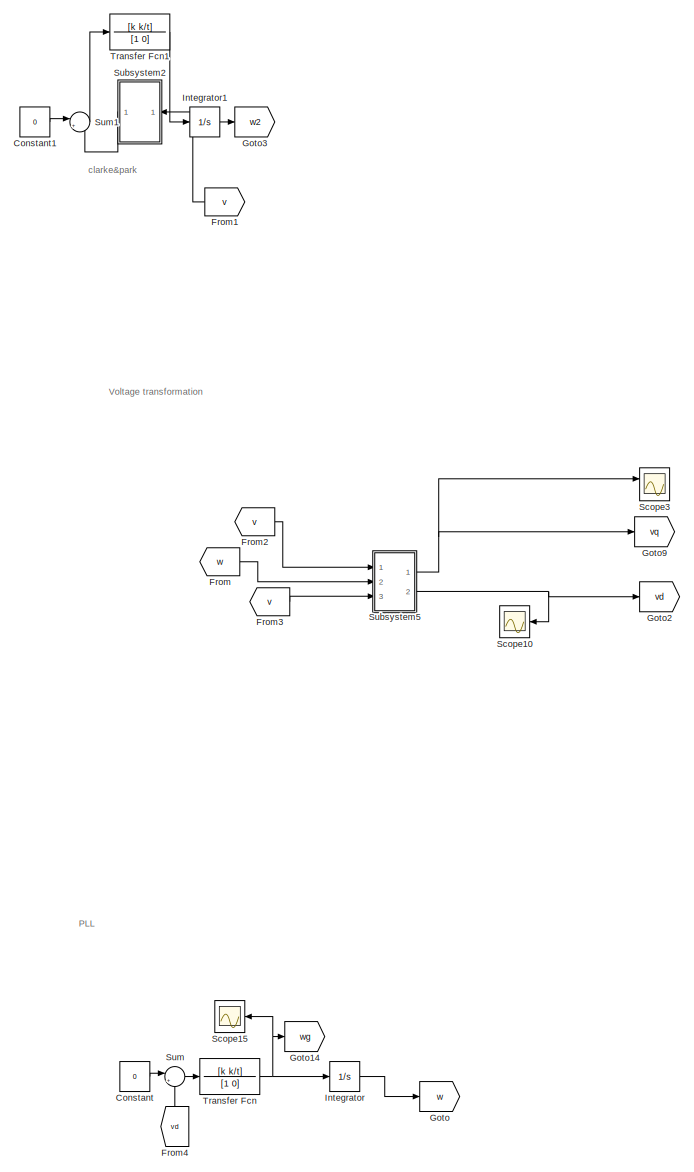
[diagram: root canvas - part 1/3, right side, full height]
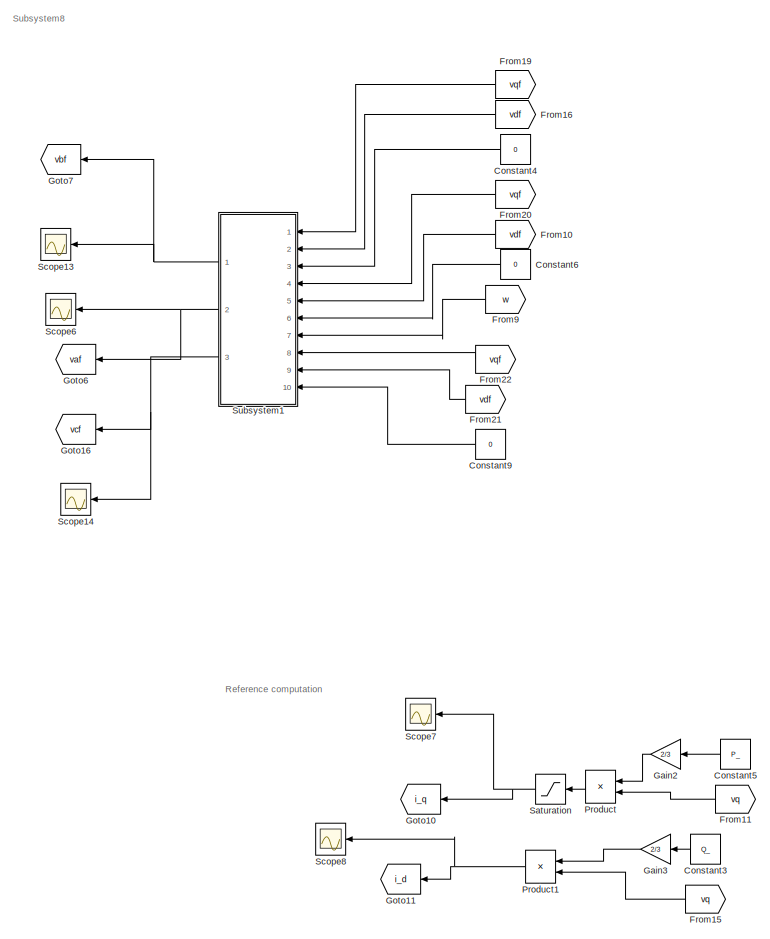
[diagram: root canvas - part 2/3, left side, full height]
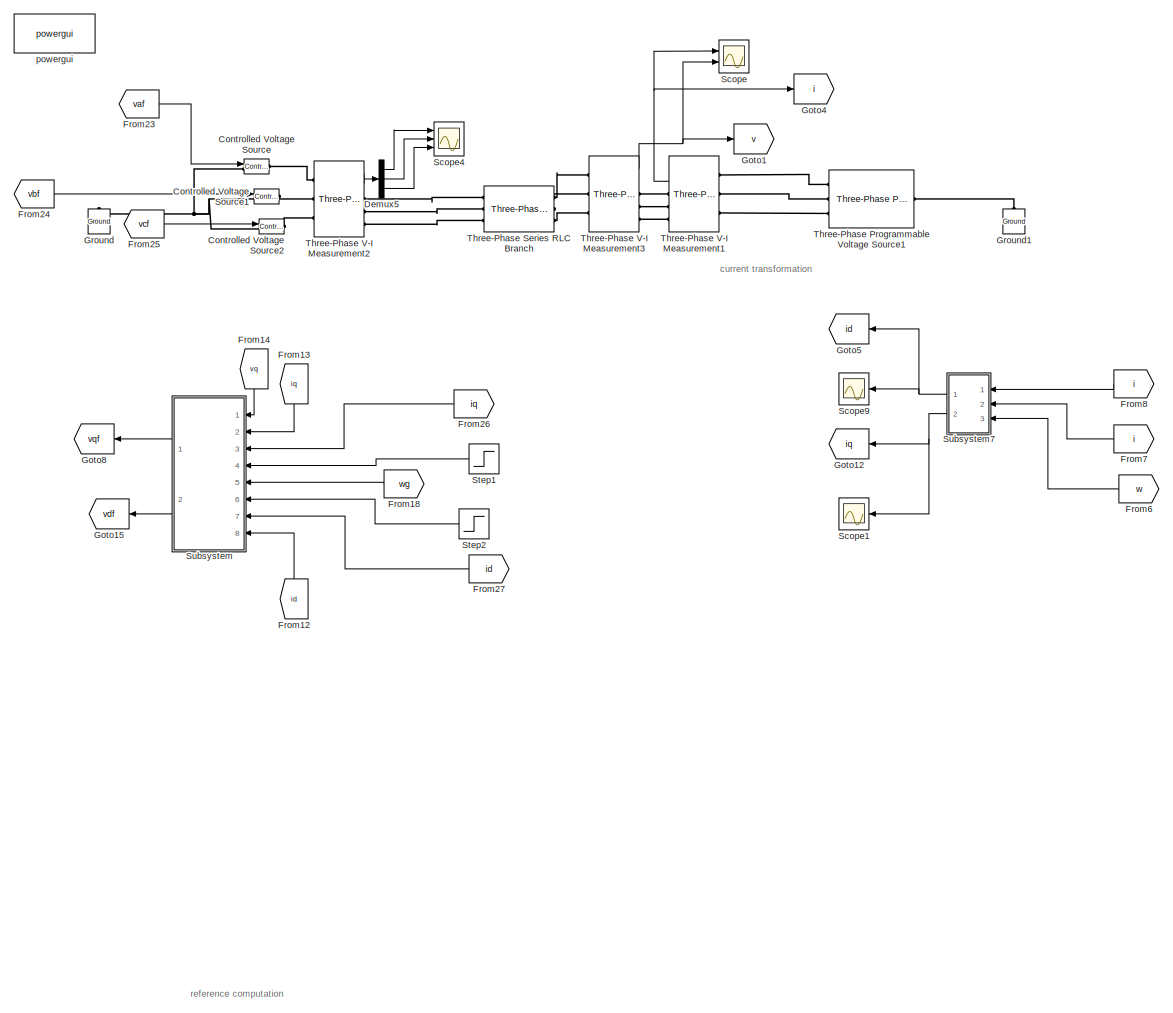
[diagram: root canvas - part 3/3, center side, full height]
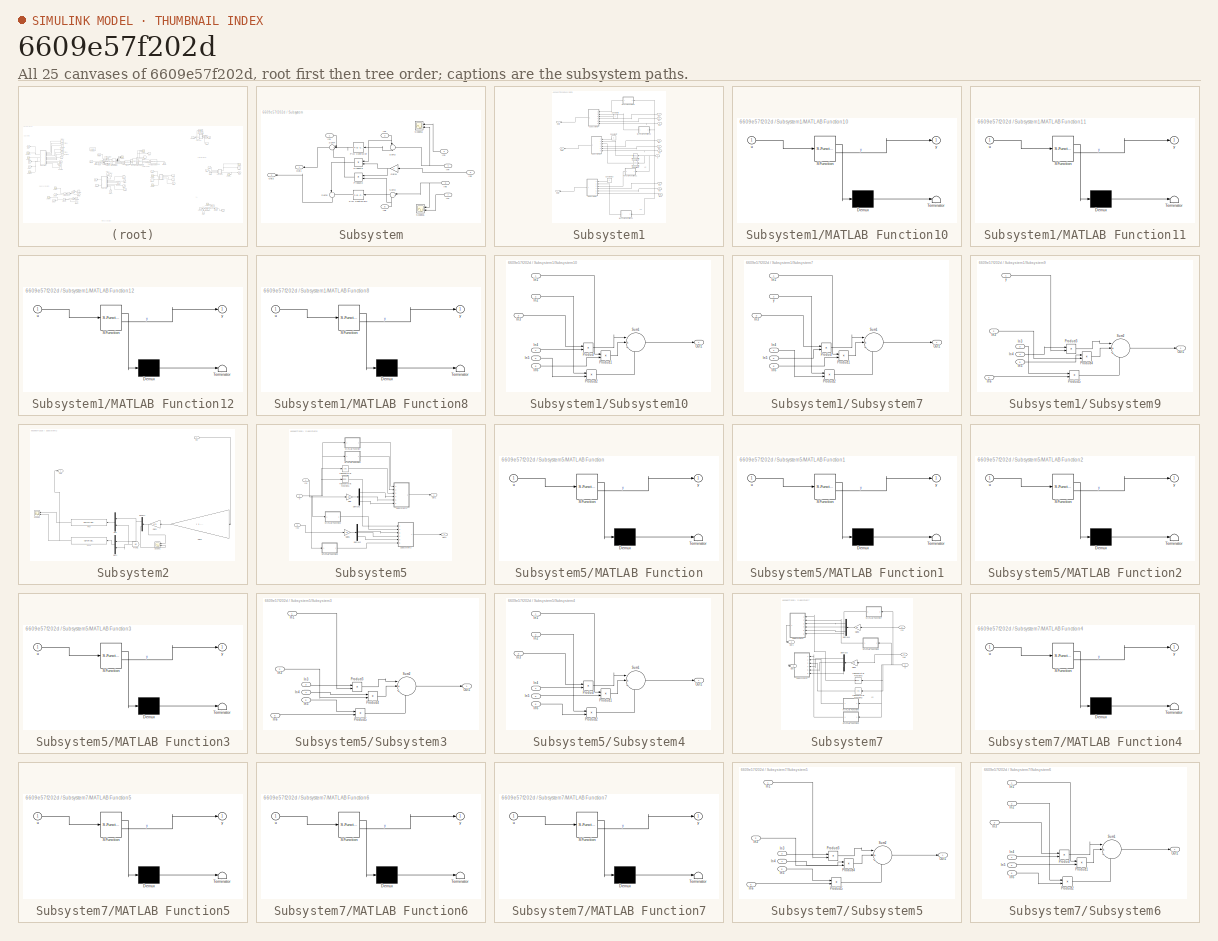
[diagram: thumbnail index - all 25 canvases of the model, root first then tree order]
MODEL slx_6609e57f202d
KIND model
CONFIG AbsTol = auto
CONFIG EnableMultiTasking = off
CONFIG FixedStep = auto
CONFIG MaxStep = auto
CONFIG MinStep = auto
CONFIG RelTol = 1e-3
CONFIG SampleTimeConstraint = Unconstrained
CONFIG SolverName = VariableStepAuto
CONFIG StartTime = 0.0
CONFIG StopTime = 1
BLOCK [Constant] Constant
  Value = 0
BLOCK [Constant] Constant1
  Value = 0
BLOCK [Constant] Constant3
  Value = Q_
BLOCK [Constant] Constant4
  Value = 0
BLOCK [Constant] Constant5
  Value = P_
BLOCK [Constant] Constant6
  Value = 0
BLOCK [Constant] Constant9
  Value = 0
BLOCK [Reference] Controlled Voltage Source  REF=powerlib/Electrical
Sources/Controlled Voltage Source
  Ports = [1, 0, 0, 0, 0, 1, 1]
  SourceBlock = powerlib/Electrical\nSources/Controlled Voltage Source
  SourceProductBaseCode = PS
  SourceType = Controlled Voltage Source
BLOCK [Reference] Controlled Voltage Source1  REF=powerlib/Electrical
Sources/Controlled Voltage Source
  Ports = [1, 0, 0, 0, 0, 1, 1]
  SourceBlock = powerlib/Electrical\nSources/Controlled Voltage Source
  SourceProductBaseCode = PS
  SourceType = Controlled Voltage Source
BLOCK [Reference] Controlled Voltage Source2  REF=powerlib/Electrical
Sources/Controlled Voltage Source
  Ports = [1, 0, 0, 0, 0, 1, 1]
  SourceBlock = powerlib/Electrical\nSources/Controlled Voltage Source
  SourceProductBaseCode = PS
  SourceType = Controlled Voltage Source
BLOCK [Demux] Demux5
  Outputs = 3
  Ports = [1, 3]
BLOCK [From] From
  GotoTag = w
BLOCK [From] From1
  GotoTag = v
  NameLocation = top
BLOCK [From] From10
  GotoTag = vdf
  NameLocation = top
BLOCK [From] From11
  GotoTag = vq
  NameLocation = top
BLOCK [From] From12
  GotoTag = id
  NameLocation = right
BLOCK [From] From13
  GotoTag = iq
  NameLocation = left
BLOCK [From] From14
  GotoTag = vq
  NameLocation = left
BLOCK [From] From15
  GotoTag = vq
  NameLocation = top
BLOCK [From] From16
  GotoTag = vdf
  NameLocation = top
BLOCK [From] From18
  GotoTag = wg
  NameLocation = top
BLOCK [From] From19
  GotoTag = vqf
  NameLocation = top
BLOCK [From] From2
  GotoTag = v
BLOCK [From] From20
  GotoTag = vqf
  NameLocation = top
BLOCK [From] From21
  GotoTag = vdf
  NameLocation = top
BLOCK [From] From22
  GotoTag = vqf
  NameLocation = top
BLOCK [From] From23
  GotoTag = vaf
BLOCK [From] From24
  GotoTag = vbf
BLOCK [From] From25
  GotoTag = vcf
BLOCK [From] From26
  GotoTag = iq
  NameLocation = top
BLOCK [From] From27
  GotoTag = id
  NameLocation = top
BLOCK [From] From3
  GotoTag = v
BLOCK [From] From4
  GotoTag = vd
  NameLocation = right
BLOCK [From] From6
  GotoTag = w
  NameLocation = top
BLOCK [From] From7
  GotoTag = i
  NameLocation = top
BLOCK [From] From8
  GotoTag = i
  NameLocation = top
BLOCK [From] From9
  GotoTag = w
  NameLocation = top
BLOCK [Gain] Gain2
  Gain = 2/3
BLOCK [Gain] Gain3
  Gain = 2/3
BLOCK [Goto] Goto
  GotoTag = w
BLOCK [Goto] Goto1
  GotoTag = v
BLOCK [Goto] Goto10
  GotoTag = i_q
  NameLocation = top
BLOCK [Goto] Goto11
  GotoTag = i_d
  NameLocation = top
BLOCK [Goto] Goto12
  GotoTag = iq
  NameLocation = top
BLOCK [Goto] Goto14
  GotoTag = wg
BLOCK [Goto] Goto15
  GotoTag = vdf
  NameLocation = top
BLOCK [Goto] Goto16
  GotoTag = vcf
  NameLocation = top
BLOCK [Goto] Goto2
  GotoTag = vd
BLOCK [Goto] Goto3
  GotoTag = w2
BLOCK [Goto] Goto4
  GotoTag = i
BLOCK [Goto] Goto5
  GotoTag = id
  NameLocation = top
BLOCK [Goto] Goto6
  GotoTag = vaf
  NameLocation = top
BLOCK [Goto] Goto7
  GotoTag = vbf
  NameLocation = top
BLOCK [Goto] Goto8
  GotoTag = vqf
  NameLocation = top
BLOCK [Goto] Goto9
  GotoTag = vq
BLOCK [Reference] Ground  REF=powerlib/Elements/Ground
  NameLocation = right
  Ports = [0, 0, 0, 0, 0, 1]
  SourceBlock = powerlib/Elements/Ground
  SourceProductBaseCode = PS
  SourceType = Ground
BLOCK [Reference] Ground1  REF=powerlib/Elements/Ground
  NameLocation = right
  Ports = [0, 0, 0, 0, 0, 1]
  SourceBlock = powerlib/Elements/Ground
  SourceProductBaseCode = PS
  SourceType = Ground
BLOCK [Integrator] Integrator
  Ports = [1, 1]
BLOCK [Integrator] Integrator1
  Ports = [1, 1]
BLOCK [Product] Product
  Inputs = */
  Ports = [2, 1]
BLOCK [Product] Product1
  Inputs = */
  Ports = [2, 1]
BLOCK [Saturate] Saturation
  LowerLimit = -15
  UpperLimit = 0
BLOCK [Scope] Scope
  Floating = off
  NumInputPorts = 2
  Ports = [2]
  ScopeSpecificationString = Simulink.scopes.TimeScopeBlockCfg('CurrentConfiguration', extmgr.ConfigurationSet(extmgr.Configuration('Core','General UI',true),extmgr.Configuration('Core','Source UI',true),extmgr.Configuration('Sources','WiredSimulink',true),extmgr.Configuration('Visuals','Time Domain',true,'SerializedDisplays',{struct('MinYLimReal','-290.25153','MaxYLimReal','486.96195','YLabelReal','','MinYLimMag',' 0.00000',...<+2676ch>
BLOCK [Scope] Scope1
  Floating = off
  NumInputPorts = 1
  Ports = [1]
  ScopeSpecificationString = Simulink.scopes.TimeScopeBlockCfg('CurrentConfiguration', extmgr.ConfigurationSet(extmgr.Configuration('Core','General UI',true),extmgr.Configuration('Core','Source UI',true),extmgr.Configuration('Sources','WiredSimulink',true,'DataLoggingVariableName','ScopeData2'),extmgr.Configuration('Visuals','Time Domain',true,'SerializedDisplays',{struct('MinYLimReal','-223.65486','MaxYLimReal','241.58406','...<+1732ch>
BLOCK [Scope] Scope10
  Floating = off
  NumInputPorts = 1
  Ports = [1]
  ScopeSpecificationString = Simulink.scopes.TimeScopeBlockCfg('CurrentConfiguration', extmgr.ConfigurationSet(extmgr.Configuration('Core','General UI',true),extmgr.Configuration('Core','Source UI',true),extmgr.Configuration('Sources','WiredSimulink',true,'DataLoggingVariableName','ScopeData4'),extmgr.Configuration('Visuals','Time Domain',true,'SerializedDisplays',{struct('MinYLimReal','-114.04403','MaxYLimReal','221.3318','Y...<+1727ch>
BLOCK [Scope] Scope13
  Floating = off
  NumInputPorts = 1
  Ports = [1]
  ScopeSpecificationString = Simulink.scopes.TimeScopeBlockCfg('CurrentConfiguration', extmgr.ConfigurationSet(extmgr.Configuration('Core','General UI',true),extmgr.Configuration('Core','Source UI',true),extmgr.Configuration('Sources','WiredSimulink',true,'DataLoggingVariableName','ScopeData2'),extmgr.Configuration('Visuals','Time Domain',true,'SerializedDisplays',{struct('MinYLimReal','-461.6092','MaxYLimReal','441.86595','Y...<+1427ch>
BLOCK [Scope] Scope14
  Floating = off
  NumInputPorts = 1
  Ports = [1]
  ScopeSpecificationString = Simulink.scopes.TimeScopeBlockCfg('CurrentConfiguration', extmgr.ConfigurationSet(extmgr.Configuration('Core','General UI',true),extmgr.Configuration('Core','Source UI',true),extmgr.Configuration('Sources','WiredSimulink',true,'DataLoggingVariableName','ScopeData4'),extmgr.Configuration('Visuals','Time Domain',true,'SerializedDisplays',{struct('MinYLimReal','-15.66197','MaxYLimReal','1.10972','YLa...<+1733ch>
BLOCK [Scope] Scope15
  Floating = off
  NumInputPorts = 1
  Ports = [1]
  ScopeSpecificationString = Simulink.scopes.TimeScopeBlockCfg('CurrentConfiguration', extmgr.ConfigurationSet(extmgr.Configuration('Core','General UI',true),extmgr.Configuration('Core','Source UI',true),extmgr.Configuration('Sources','WiredSimulink',true,'DataLoggingVariableName','ScopeData1'),extmgr.Configuration('Visuals','Time Domain',true,'SerializedDisplays',{struct('MinYLimReal','-1123.99695','MaxYLimReal','620.20518',...<+1751ch>
BLOCK [Scope] Scope3
  Floating = off
  NumInputPorts = 2
  Ports = [2]
  ScopeSpecificationString = Simulink.scopes.TimeScopeBlockCfg('CurrentConfiguration', extmgr.ConfigurationSet(extmgr.Configuration('Core','General UI',true),extmgr.Configuration('Core','Source UI',true),extmgr.Configuration('Sources','WiredSimulink',true,'DataLoggingVariableName','ScopeData2'),extmgr.Configuration('Visuals','Time Domain',true,'SerializedDisplays',{struct('MinYLimReal','-40.82483','MaxYLimReal','367.42346','Y...<+1439ch>
BLOCK [Scope] Scope4
  Floating = off
  NumInputPorts = 3
  Ports = [3]
  ScopeSpecificationString = Simulink.scopes.TimeScopeBlockCfg('CurrentConfiguration', extmgr.ConfigurationSet(extmgr.Configuration('Core','General UI',true),extmgr.Configuration('Core','Source UI',true),extmgr.Configuration('Sources','WiredSimulink',true,'DataLoggingVariableName','ScopeData1'),extmgr.Configuration('Visuals','Time Domain',true,'SerializedDisplays',{struct('MinYLimReal','-1008.44415','MaxYLimReal','1589.78851'...<+1886ch>
BLOCK [Scope] Scope6
  Floating = off
  NumInputPorts = 1
  Ports = [1]
  ScopeSpecificationString = Simulink.scopes.TimeScopeBlockCfg('CurrentConfiguration', extmgr.ConfigurationSet(extmgr.Configuration('Core','General UI',true),extmgr.Configuration('Core','Source UI',true),extmgr.Configuration('Sources','WiredSimulink',true,'DataLoggingVariableName','ScopeData3'),extmgr.Configuration('Visuals','Time Domain',true,'SerializedDisplays',{struct('MinYLimReal','-2793.26879','MaxYLimReal','2713.02913'...<+1775ch>
BLOCK [Scope] Scope7
  Floating = off
  NumInputPorts = 1
  Ports = [1]
  ScopeSpecificationString = Simulink.scopes.TimeScopeBlockCfg('CurrentConfiguration', extmgr.ConfigurationSet(extmgr.Configuration('Core','General UI',true),extmgr.Configuration('Core','Source UI',true),extmgr.Configuration('Sources','WiredSimulink',true,'DataLoggingVariableName','ScopeData1'),extmgr.Configuration('Visuals','Time Domain',true,'SerializedDisplays',{struct('MinYLimReal','-15.08891','MaxYLimReal','-14.19978','Y...<+1725ch>
BLOCK [Scope] Scope8
  Floating = off
  NumInputPorts = 1
  Ports = [1]
  ScopeSpecificationString = Simulink.scopes.TimeScopeBlockCfg('CurrentConfiguration', extmgr.ConfigurationSet(extmgr.Configuration('Core','General UI',true),extmgr.Configuration('Core','Source UI',true),extmgr.Configuration('Sources','WiredSimulink',true,'DataLoggingVariableName','ScopeData2'),extmgr.Configuration('Visuals','Time Domain',true,'SerializedDisplays',{struct('MinYLimReal','-15.59922','MaxYLimReal','-9.60698','YL...<+1720ch>
BLOCK [Scope] Scope9
  Floating = off
  NumInputPorts = 1
  Ports = [1]
  ScopeSpecificationString = Simulink.scopes.TimeScopeBlockCfg('CurrentConfiguration', extmgr.ConfigurationSet(extmgr.Configuration('Core','General UI',true),extmgr.Configuration('Core','Source UI',true),extmgr.Configuration('Sources','WiredSimulink',true,'DataLoggingVariableName','ScopeData3'),extmgr.Configuration('Visuals','Time Domain',true,'SerializedDisplays',{struct('MinYLimReal','-12.86952','MaxYLimReal','2.25479','YLa...<+1419ch>
BLOCK [Step] Step1
  After = -14.29
  SampleTime = 0
  Time = 0.2
BLOCK [Step] Step2
  After = -10.21
  SampleTime = 0
  Time = 0.1
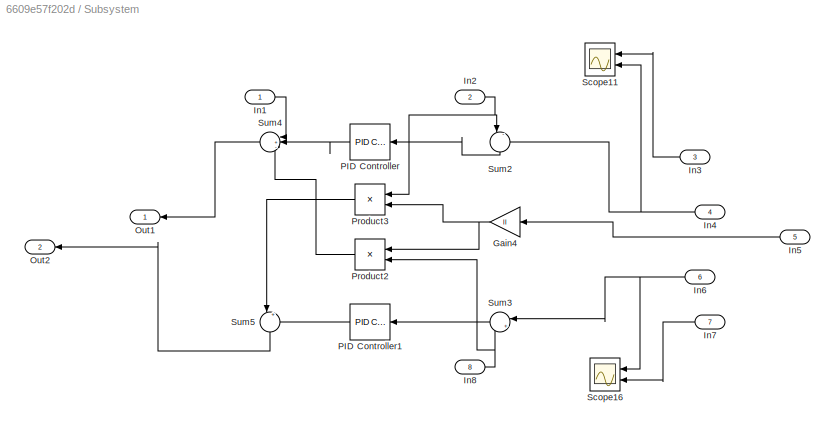
BLOCK [SubSystem] Subsystem
  Ports = [8, 2]
  RequestExecContextInheritance = off
BLOCK [Gain] Subsystem/Gain4
  Gain = ll
BLOCK [Inport] Subsystem/In1
BLOCK [Inport] Subsystem/In2
  Port = 2
BLOCK [Inport] Subsystem/In3
  Port = 3
BLOCK [Inport] Subsystem/In4
  Port = 4
BLOCK [Inport] Subsystem/In5
  Port = 5
BLOCK [Inport] Subsystem/In6
  Port = 6
BLOCK [Inport] Subsystem/In7
  Port = 7
BLOCK [Inport] Subsystem/In8
  Port = 8
BLOCK [Outport] Subsystem/Out1
BLOCK [Outport] Subsystem/Out2
  Port = 2
BLOCK [Reference] Subsystem/PID Controller  REF=pid_lib/PID Controller
  Ports = [1, 1]
  SourceBlock = pid_lib/PID Controller
  SourceProductBaseCode = SL
  SourceType = PID 1dof
BLOCK [Reference] Subsystem/PID Controller1  REF=pid_lib/PID Controller
  Ports = [1, 1]
  SourceBlock = pid_lib/PID Controller
  SourceProductBaseCode = SL
  SourceType = PID 1dof
BLOCK [Product] Subsystem/Product2
  Ports = [2, 1]
BLOCK [Product] Subsystem/Product3
  Ports = [2, 1]
BLOCK [Scope] Subsystem/Scope11
  Floating = off
  NumInputPorts = 2
  Ports = [2]
  ScopeSpecificationString = Simulink.scopes.TimeScopeBlockCfg('CurrentConfiguration', extmgr.ConfigurationSet(extmgr.Configuration('Core','General UI',true),extmgr.Configuration('Core','Source UI',true),extmgr.Configuration('Sources','WiredSimulink',true,'DataLoggingVariableName','ScopeData5'),extmgr.Configuration('Visuals','Time Domain',true,'SerializedDisplays',{struct('MinYLimReal','-15.06928','MaxYLimReal','0.91841','YLa...<+1752ch>
BLOCK [Scope] Subsystem/Scope16
  Floating = off
  NumInputPorts = 2
  Ports = [2]
  ScopeSpecificationString = Simulink.scopes.TimeScopeBlockCfg('CurrentConfiguration', extmgr.ConfigurationSet(extmgr.Configuration('Core','General UI',true),extmgr.Configuration('Core','Source UI',true),extmgr.Configuration('Sources','WiredSimulink',true,'DataLoggingVariableName','ScopeData6'),extmgr.Configuration('Visuals','Time Domain',true,'SerializedDisplays',{struct('MinYLimReal','-14.86385','MaxYLimReal','5.31585','YLa...<+1752ch>
BLOCK [Sum] Subsystem/Sum2
  Inputs = |-+
  NameLocation = right
  Ports = [2, 1]
BLOCK [Sum] Subsystem/Sum3
  Inputs = |+-
  Ports = [2, 1]
BLOCK [Sum] Subsystem/Sum4
  Inputs = |+--
  Ports = [3, 1]
BLOCK [Sum] Subsystem/Sum5
  Inputs = |+-
  NameLocation = right
  Ports = [2, 1]
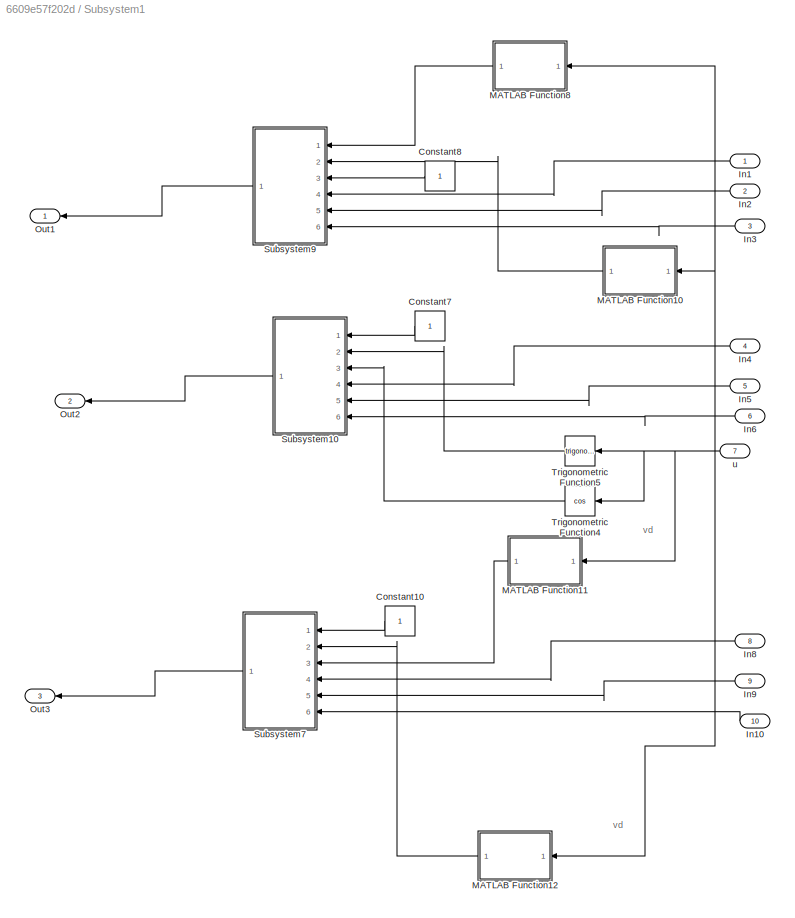
BLOCK [SubSystem] Subsystem1
  Ports = [10, 3]
  RequestExecContextInheritance = off
BLOCK [Constant] Subsystem1/Constant10
BLOCK [Constant] Subsystem1/Constant7
BLOCK [Constant] Subsystem1/Constant8
BLOCK [Inport] Subsystem1/In1
BLOCK [Inport] Subsystem1/In10
  Port = 10
BLOCK [Inport] Subsystem1/In2
  Port = 2
BLOCK [Inport] Subsystem1/In3
  Port = 3
BLOCK [Inport] Subsystem1/In4
  Port = 4
BLOCK [Inport] Subsystem1/In5
  Port = 5
BLOCK [Inport] Subsystem1/In6
  Port = 6
BLOCK [Inport] Subsystem1/In8
  Port = 8
BLOCK [Inport] Subsystem1/In9
  Port = 9
BLOCK [SubSystem] Subsystem1/MATLAB Function10
  ErrorFcn = Stateflow.Translate.translate
  NameLocation = top
  PermitHierarchicalResolution = ExplicitOnly
  Ports = [1, 1]
  RequestExecContextInheritance = off
  SFBlockType = MATLAB Function
  TreatAsAtomicUnit = on
BLOCK [Demux] Subsystem1/MATLAB Function10/ Demux 
  Outputs = 1
  Ports = [1, 1]
BLOCK [S-Function] Subsystem1/MATLAB Function10/ SFunction 
  EnableBusSupport = on
  FunctionName = sf_sfun
  PortCounts = [1 2]
  Ports = [1, 2]
  SFcnIsStateOwnerBlock = off
  SFunctionDeploymentMode = off
  Tag = Stateflow S-Function 9
BLOCK [Terminator] Subsystem1/MATLAB Function10/ Terminator 
BLOCK [Inport] Subsystem1/MATLAB Function10/u
BLOCK [Outport] Subsystem1/MATLAB Function10/y
BLOCK [SubSystem] Subsystem1/MATLAB Function11
  ErrorFcn = Stateflow.Translate.translate
  NameLocation = top
  PermitHierarchicalResolution = ExplicitOnly
  Ports = [1, 1]
  RequestExecContextInheritance = off
  SFBlockType = MATLAB Function
  TreatAsAtomicUnit = on
BLOCK [Demux] Subsystem1/MATLAB Function11/ Demux 
  Outputs = 1
  Ports = [1, 1]
BLOCK [S-Function] Subsystem1/MATLAB Function11/ SFunction 
  EnableBusSupport = on
  FunctionName = sf_sfun
  PortCounts = [1 2]
  Ports = [1, 2]
  SFcnIsStateOwnerBlock = off
  SFunctionDeploymentMode = off
  Tag = Stateflow S-Function 10
BLOCK [Terminator] Subsystem1/MATLAB Function11/ Terminator 
BLOCK [Inport] Subsystem1/MATLAB Function11/u
BLOCK [Outport] Subsystem1/MATLAB Function11/y
BLOCK [SubSystem] Subsystem1/MATLAB Function12
  ErrorFcn = Stateflow.Translate.translate
  NameLocation = top
  PermitHierarchicalResolution = ExplicitOnly
  Ports = [1, 1]
  RequestExecContextInheritance = off
  SFBlockType = MATLAB Function
  TreatAsAtomicUnit = on
BLOCK [Demux] Subsystem1/MATLAB Function12/ Demux 
  Outputs = 1
  Ports = [1, 1]
BLOCK [S-Function] Subsystem1/MATLAB Function12/ SFunction 
  EnableBusSupport = on
  FunctionName = sf_sfun
  PortCounts = [1 2]
  Ports = [1, 2]
  SFcnIsStateOwnerBlock = off
  SFunctionDeploymentMode = off
  Tag = Stateflow S-Function 13
BLOCK [Terminator] Subsystem1/MATLAB Function12/ Terminator 
BLOCK [Inport] Subsystem1/MATLAB Function12/u
BLOCK [Outport] Subsystem1/MATLAB Function12/y
BLOCK [SubSystem] Subsystem1/MATLAB Function8
  ErrorFcn = Stateflow.Translate.translate
  NameLocation = top
  PermitHierarchicalResolution = ExplicitOnly
  Ports = [1, 1]
  RequestExecContextInheritance = off
  SFBlockType = MATLAB Function
  TreatAsAtomicUnit = on
BLOCK [Demux] Subsystem1/MATLAB Function8/ Demux 
  Outputs = 1
  Ports = [1, 1]
BLOCK [S-Function] Subsystem1/MATLAB Function8/ SFunction 
  EnableBusSupport = on
  FunctionName = sf_sfun
  PortCounts = [1 2]
  Ports = [1, 2]
  SFcnIsStateOwnerBlock = off
  SFunctionDeploymentMode = off
  Tag = Stateflow S-Function 11
BLOCK [Terminator] Subsystem1/MATLAB Function8/ Terminator 
BLOCK [Inport] Subsystem1/MATLAB Function8/u
BLOCK [Outport] Subsystem1/MATLAB Function8/y
BLOCK [Outport] Subsystem1/Out1
BLOCK [Outport] Subsystem1/Out2
  Port = 2
BLOCK [Outport] Subsystem1/Out3
  Port = 3
BLOCK [SubSystem] Subsystem1/Subsystem10
  NameLocation = top
  Ports = [6, 1]
  RequestExecContextInheritance = off
BLOCK [Inport] Subsystem1/Subsystem10/In1
BLOCK [Inport] Subsystem1/Subsystem10/In2
  Port = 2
BLOCK [Inport] Subsystem1/Subsystem10/In3
  Port = 3
BLOCK [Inport] Subsystem1/Subsystem10/In4
  Port = 4
BLOCK [Inport] Subsystem1/Subsystem10/In5
  Port = 5
BLOCK [Inport] Subsystem1/Subsystem10/In6
  Port = 6
BLOCK [Outport] Subsystem1/Subsystem10/Out1
BLOCK [Product] Subsystem1/Subsystem10/Product
  Ports = [2, 1]
BLOCK [Product] Subsystem1/Subsystem10/Product1
  Ports = [2, 1]
BLOCK [Product] Subsystem1/Subsystem10/Product2
  Ports = [2, 1]
BLOCK [Sum] Subsystem1/Subsystem10/Sum1
  Inputs = |+++
  Ports = [3, 1]
BLOCK [SubSystem] Subsystem1/Subsystem7
  NameLocation = top
  Ports = [6, 1]
  RequestExecContextInheritance = off
BLOCK [Inport] Subsystem1/Subsystem7/In1
BLOCK [Inport] Subsystem1/Subsystem7/In3
  Port = 3
BLOCK [Inport] Subsystem1/Subsystem7/In4
  Port = 4
BLOCK [Inport] Subsystem1/Subsystem7/In5
  Port = 5
BLOCK [Inport] Subsystem1/Subsystem7/In6
  Port = 6
BLOCK [Outport] Subsystem1/Subsystem7/Out1
BLOCK [Product] Subsystem1/Subsystem7/Product
  Ports = [2, 1]
BLOCK [Product] Subsystem1/Subsystem7/Product1
  Ports = [2, 1]
BLOCK [Product] Subsystem1/Subsystem7/Product2
  Ports = [2, 1]
BLOCK [Sum] Subsystem1/Subsystem7/Sum1
  Inputs = |+++
  Ports = [3, 1]
BLOCK [Inport] Subsystem1/Subsystem7/y
  Port = 2
BLOCK [SubSystem] Subsystem1/Subsystem9
  NameLocation = top
  Ports = [6, 1]
  RequestExecContextInheritance = off
BLOCK [Inport] Subsystem1/Subsystem9/In2
  Port = 2
BLOCK [Inport] Subsystem1/Subsystem9/In3
  Port = 3
BLOCK [Inport] Subsystem1/Subsystem9/In4
  Port = 4
BLOCK [Inport] Subsystem1/Subsystem9/In5
  Port = 5
BLOCK [Inport] Subsystem1/Subsystem9/In6
  Port = 6
BLOCK [Outport] Subsystem1/Subsystem9/Out1
BLOCK [Product] Subsystem1/Subsystem9/Product3
  Ports = [2, 1]
BLOCK [Product] Subsystem1/Subsystem9/Product4
  Ports = [2, 1]
BLOCK [Product] Subsystem1/Subsystem9/Product5
  Ports = [2, 1]
BLOCK [Sum] Subsystem1/Subsystem9/Sum2
  Inputs = |+++
  Ports = [3, 1]
BLOCK [Inport] Subsystem1/Subsystem9/y
BLOCK [Trigonometry] Subsystem1/Trigonometric Function4
  NameLocation = top
  Operator = cos
  Ports = [1, 1]
BLOCK [Trigonometry] Subsystem1/Trigonometric Function5
  NameLocation = top
  Ports = [1, 1]
BLOCK [Inport] Subsystem1/u
  Port = 7
BLOCK [SubSystem] Subsystem2
  NameLocation = top
  Ports = [1, 1]
  RequestExecContextInheritance = off
BLOCK [Demux] Subsystem2/Demux4
  NameLocation = top
  Outputs = [2 1]
  Ports = [1, 2]
BLOCK [Fcn] Subsystem2/Fcn
  Expr = u[1]*cos(u[3]) + u[2]*sin(u[3])
  NameLocation = top
BLOCK [Fcn] Subsystem2/Fcn1
  Expr = u[1]*sin(u[3]) - u[2]*cos(u[3])
  NameLocation = top
BLOCK [From] Subsystem2/From1
  GotoTag = w2
  NameLocation = top
BLOCK [Gain] Subsystem2/Gain1
  Gain = 2/3
  NameLocation = top
  OutDataTypeStr = Inherit: Same as input
  ParamDataTypeStr = Inherit: Same as input
  SaturateOnIntegerOverflow = on
BLOCK [Gain] Subsystem2/Gain3
  Gain = [ 1   -1/2   -1/2; 0   -sqrt(3)/2   sqrt(3)/2; 1/2  1/2  1/2 ]
  Multiplication = Matrix(K*u) (u vector)
  NameLocation = top
  OutDataTypeStr = Inherit: Same as input
  ParamDataTypeStr = Inherit: Same as input
  SaturateOnIntegerOverflow = on
BLOCK [Inport] Subsystem2/In1
BLOCK [Mux] Subsystem2/Mux
  DisplayOption = bar
  Inputs = 2
  NameLocation = top
  Ports = [2, 1]
BLOCK [Mux] Subsystem2/Mux1
  DisplayOption = bar
  Inputs = 2
  NameLocation = top
  Ports = [2, 1]
BLOCK [Outport] Subsystem2/Out1
BLOCK [Scope] Subsystem2/Scope1
  Floating = off
  NameLocation = top
  NumInputPorts = 2
  Ports = [2]
  ScopeSpecificationString = Simulink.scopes.TimeScopeBlockCfg('CurrentConfiguration', extmgr.ConfigurationSet(extmgr.Configuration('Core','General UI',true),extmgr.Configuration('Core','Source UI',true),extmgr.Configuration('Sources','WiredSimulink',true,'DataLoggingVariableName','ScopeData1'),extmgr.Configuration('Visuals','Time Domain',true,'SerializedDisplays',{struct('MinYLimReal','-211.42927','MaxYLimReal','219.46841','...<+2268ch>
BLOCK [Scope] Subsystem2/Scope2
  Floating = off
  NameLocation = top
  NumInputPorts = 2
  Ports = [2]
  ScopeSpecificationString = Simulink.scopes.TimeScopeBlockCfg('CurrentConfiguration', extmgr.ConfigurationSet(extmgr.Configuration('Core','General UI',true),extmgr.Configuration('Core','Source UI',true),extmgr.Configuration('Sources','WiredSimulink',true,'DataLoggingVariableName','ScopeData2'),extmgr.Configuration('Visuals','Time Domain',true,'SerializedDisplays',{struct('MinYLimReal','-408.24825','MaxYLimReal','408.24795','...<+1606ch>
BLOCK [SubSystem] Subsystem5
  Ports = [3, 2]
  RequestExecContextInheritance = off
BLOCK [Demux] Subsystem5/Demux1
  Outputs = [1 1 1]
  Ports = [1, 3]
BLOCK [Demux] Subsystem5/Demux2
  Outputs = [1 1 1]
  Ports = [1, 3]
BLOCK [Gain] Subsystem5/Gain
  Gain = 2/3
BLOCK [Gain] Subsystem5/Gain5
  Gain = 2/3
BLOCK [Inport] Subsystem5/In1
BLOCK [Inport] Subsystem5/In3
  Port = 3
BLOCK [SubSystem] Subsystem5/MATLAB Function
  ErrorFcn = Stateflow.Translate.translate
  PermitHierarchicalResolution = ExplicitOnly
  Ports = [1, 1]
  RequestExecContextInheritance = off
  SFBlockType = MATLAB Function
  TreatAsAtomicUnit = on
BLOCK [Demux] Subsystem5/MATLAB Function/ Demux 
  Outputs = 1
  Ports = [1, 1]
BLOCK [S-Function] Subsystem5/MATLAB Function/ SFunction 
  EnableBusSupport = on
  FunctionName = sf_sfun
  PortCounts = [1 2]
  Ports = [1, 2]
  SFcnIsStateOwnerBlock = off
  SFunctionDeploymentMode = off
  Tag = Stateflow S-Function 2
BLOCK [Terminator] Subsystem5/MATLAB Function/ Terminator 
BLOCK [Inport] Subsystem5/MATLAB Function/u
BLOCK [Outport] Subsystem5/MATLAB Function/y
BLOCK [SubSystem] Subsystem5/MATLAB Function1
  ErrorFcn = Stateflow.Translate.translate
  PermitHierarchicalResolution = ExplicitOnly
  Ports = [1, 1]
  RequestExecContextInheritance = off
  SFBlockType = MATLAB Function
  TreatAsAtomicUnit = on
BLOCK [Demux] Subsystem5/MATLAB Function1/ Demux 
  Outputs = 1
  Ports = [1, 1]
BLOCK [S-Function] Subsystem5/MATLAB Function1/ SFunction 
  EnableBusSupport = on
  FunctionName = sf_sfun
  PortCounts = [1 2]
  Ports = [1, 2]
  SFcnIsStateOwnerBlock = off
  SFunctionDeploymentMode = off
  Tag = Stateflow S-Function 1
BLOCK [Terminator] Subsystem5/MATLAB Function1/ Terminator 
BLOCK [Inport] Subsystem5/MATLAB Function1/u
BLOCK [Outport] Subsystem5/MATLAB Function1/y
BLOCK [SubSystem] Subsystem5/MATLAB Function2
  ErrorFcn = Stateflow.Translate.translate
  PermitHierarchicalResolution = ExplicitOnly
  Ports = [1, 1]
  RequestExecContextInheritance = off
  SFBlockType = MATLAB Function
  TreatAsAtomicUnit = on
BLOCK [Demux] Subsystem5/MATLAB Function2/ Demux 
  Outputs = 1
  Ports = [1, 1]
BLOCK [S-Function] Subsystem5/MATLAB Function2/ SFunction 
  EnableBusSupport = on
  FunctionName = sf_sfun
  PortCounts = [1 2]
  Ports = [1, 2]
  SFcnIsStateOwnerBlock = off
  SFunctionDeploymentMode = off
  Tag = Stateflow S-Function 3
BLOCK [Terminator] Subsystem5/MATLAB Function2/ Terminator 
BLOCK [Inport] Subsystem5/MATLAB Function2/u
BLOCK [Outport] Subsystem5/MATLAB Function2/y
BLOCK [SubSystem] Subsystem5/MATLAB Function3
  ErrorFcn = Stateflow.Translate.translate
  PermitHierarchicalResolution = ExplicitOnly
  Ports = [1, 1]
  RequestExecContextInheritance = off
  SFBlockType = MATLAB Function
  TreatAsAtomicUnit = on
BLOCK [Demux] Subsystem5/MATLAB Function3/ Demux 
  Outputs = 1
  Ports = [1, 1]
BLOCK [S-Function] Subsystem5/MATLAB Function3/ SFunction 
  EnableBusSupport = on
  FunctionName = sf_sfun
  PortCounts = [1 2]
  Ports = [1, 2]
  SFcnIsStateOwnerBlock = off
  SFunctionDeploymentMode = off
  Tag = Stateflow S-Function 4
BLOCK [Terminator] Subsystem5/MATLAB Function3/ Terminator 
BLOCK [Inport] Subsystem5/MATLAB Function3/u
BLOCK [Outport] Subsystem5/MATLAB Function3/y
BLOCK [Outport] Subsystem5/Out1
BLOCK [Outport] Subsystem5/Out2
  Port = 2
BLOCK [SubSystem] Subsystem5/Subsystem3
  Ports = [6, 1]
  RequestExecContextInheritance = off
BLOCK [Inport] Subsystem5/Subsystem3/In1
BLOCK [Inport] Subsystem5/Subsystem3/In2
  Port = 2
BLOCK [Inport] Subsystem5/Subsystem3/In3
  Port = 3
BLOCK [Inport] Subsystem5/Subsystem3/In4
  Port = 4
BLOCK [Inport] Subsystem5/Subsystem3/In5
  Port = 5
BLOCK [Inport] Subsystem5/Subsystem3/In6
  Port = 6
BLOCK [Outport] Subsystem5/Subsystem3/Out1
BLOCK [Product] Subsystem5/Subsystem3/Product3
  Ports = [2, 1]
BLOCK [Product] Subsystem5/Subsystem3/Product4
  Ports = [2, 1]
BLOCK [Product] Subsystem5/Subsystem3/Product5
  Ports = [2, 1]
BLOCK [Sum] Subsystem5/Subsystem3/Sum2
  Inputs = |+++
  Ports = [3, 1]
BLOCK [SubSystem] Subsystem5/Subsystem4
  Ports = [6, 1]
  RequestExecContextInheritance = off
BLOCK [Inport] Subsystem5/Subsystem4/In1
BLOCK [Inport] Subsystem5/Subsystem4/In2
  Port = 2
BLOCK [Inport] Subsystem5/Subsystem4/In3
  Port = 3
BLOCK [Inport] Subsystem5/Subsystem4/In4
  Port = 4
BLOCK [Inport] Subsystem5/Subsystem4/In5
  Port = 5
BLOCK [Inport] Subsystem5/Subsystem4/In6
  Port = 6
BLOCK [Outport] Subsystem5/Subsystem4/Out1
BLOCK [Product] Subsystem5/Subsystem4/Product
  Ports = [2, 1]
BLOCK [Product] Subsystem5/Subsystem4/Product1
  Ports = [2, 1]
BLOCK [Product] Subsystem5/Subsystem4/Product2
  Ports = [2, 1]
BLOCK [Sum] Subsystem5/Subsystem4/Sum1
  Inputs = |+++
  Ports = [3, 1]
BLOCK [Trigonometry] Subsystem5/Trigonometric Function
  Operator = cos
  Ports = [1, 1]
BLOCK [Trigonometry] Subsystem5/Trigonometric Function1
  Ports = [1, 1]
BLOCK [Inport] Subsystem5/u
  Port = 2
BLOCK [SubSystem] Subsystem7
  Ports = [3, 2]
  RequestExecContextInheritance = off
BLOCK [Demux] Subsystem7/Demux3
  NameLocation = top
  Outputs = [1 1 1]
  Ports = [1, 3]
BLOCK [Demux] Subsystem7/Demux4
  NameLocation = top
  Outputs = [1 1 1]
  Ports = [1, 3]
BLOCK [Gain] Subsystem7/Gain1
  Gain = 2/3
  NameLocation = top
BLOCK [Gain] Subsystem7/Gain6
  Gain = 2/3
BLOCK [Inport] Subsystem7/In1
BLOCK [Inport] Subsystem7/In2
  Port = 2
BLOCK [SubSystem] Subsystem7/MATLAB Function4
  ErrorFcn = Stateflow.Translate.translate
  NameLocation = top
  PermitHierarchicalResolution = ExplicitOnly
  Ports = [1, 1]
  RequestExecContextInheritance = off
  SFBlockType = MATLAB Function
  TreatAsAtomicUnit = on
BLOCK [Demux] Subsystem7/MATLAB Function4/ Demux 
  Outputs = 1
  Ports = [1, 1]
BLOCK [S-Function] Subsystem7/MATLAB Function4/ SFunction 
  EnableBusSupport = on
  FunctionName = sf_sfun
  PortCounts = [1 2]
  Ports = [1, 2]
  SFcnIsStateOwnerBlock = off
  SFunctionDeploymentMode = off
  Tag = Stateflow S-Function 5
BLOCK [Terminator] Subsystem7/MATLAB Function4/ Terminator 
BLOCK [Inport] Subsystem7/MATLAB Function4/u
BLOCK [Outport] Subsystem7/MATLAB Function4/y
BLOCK [SubSystem] Subsystem7/MATLAB Function5
  ErrorFcn = Stateflow.Translate.translate
  NameLocation = top
  PermitHierarchicalResolution = ExplicitOnly
  Ports = [1, 1]
  RequestExecContextInheritance = off
  SFBlockType = MATLAB Function
  TreatAsAtomicUnit = on
BLOCK [Demux] Subsystem7/MATLAB Function5/ Demux 
  Outputs = 1
  Ports = [1, 1]
BLOCK [S-Function] Subsystem7/MATLAB Function5/ SFunction 
  EnableBusSupport = on
  FunctionName = sf_sfun
  PortCounts = [1 2]
  Ports = [1, 2]
  SFcnIsStateOwnerBlock = off
  SFunctionDeploymentMode = off
  Tag = Stateflow S-Function 6
BLOCK [Terminator] Subsystem7/MATLAB Function5/ Terminator 
BLOCK [Inport] Subsystem7/MATLAB Function5/u
BLOCK [Outport] Subsystem7/MATLAB Function5/y
BLOCK [SubSystem] Subsystem7/MATLAB Function6
  ErrorFcn = Stateflow.Translate.translate
  NameLocation = top
  PermitHierarchicalResolution = ExplicitOnly
  Ports = [1, 1]
  RequestExecContextInheritance = off
  SFBlockType = MATLAB Function
  TreatAsAtomicUnit = on
BLOCK [Demux] Subsystem7/MATLAB Function6/ Demux 
  Outputs = 1
  Ports = [1, 1]
BLOCK [S-Function] Subsystem7/MATLAB Function6/ SFunction 
  EnableBusSupport = on
  FunctionName = sf_sfun
  PortCounts = [1 2]
  Ports = [1, 2]
  SFcnIsStateOwnerBlock = off
  SFunctionDeploymentMode = off
  Tag = Stateflow S-Function 7
BLOCK [Terminator] Subsystem7/MATLAB Function6/ Terminator 
BLOCK [Inport] Subsystem7/MATLAB Function6/u
BLOCK [Outport] Subsystem7/MATLAB Function6/y
BLOCK [SubSystem] Subsystem7/MATLAB Function7
  ErrorFcn = Stateflow.Translate.translate
  NameLocation = top
  PermitHierarchicalResolution = ExplicitOnly
  Ports = [1, 1]
  RequestExecContextInheritance = off
  SFBlockType = MATLAB Function
  TreatAsAtomicUnit = on
BLOCK [Demux] Subsystem7/MATLAB Function7/ Demux 
  Outputs = 1
  Ports = [1, 1]
BLOCK [S-Function] Subsystem7/MATLAB Function7/ SFunction 
  EnableBusSupport = on
  FunctionName = sf_sfun
  PortCounts = [1 2]
  Ports = [1, 2]
  SFcnIsStateOwnerBlock = off
  SFunctionDeploymentMode = off
  Tag = Stateflow S-Function 8
BLOCK [Terminator] Subsystem7/MATLAB Function7/ Terminator 
BLOCK [Inport] Subsystem7/MATLAB Function7/u
BLOCK [Outport] Subsystem7/MATLAB Function7/y
BLOCK [Outport] Subsystem7/Out1
BLOCK [Outport] Subsystem7/Out2
  Port = 2
BLOCK [SubSystem] Subsystem7/Subsystem5
  NameLocation = top
  Ports = [6, 1]
  RequestExecContextInheritance = off
BLOCK [Inport] Subsystem7/Subsystem5/In1
BLOCK [Inport] Subsystem7/Subsystem5/In2
  Port = 2
BLOCK [Inport] Subsystem7/Subsystem5/In3
  Port = 3
BLOCK [Inport] Subsystem7/Subsystem5/In4
  Port = 4
BLOCK [Inport] Subsystem7/Subsystem5/In5
  Port = 5
BLOCK [Inport] Subsystem7/Subsystem5/In6
  Port = 6
BLOCK [Outport] Subsystem7/Subsystem5/Out1
BLOCK [Product] Subsystem7/Subsystem5/Product3
  Ports = [2, 1]
BLOCK [Product] Subsystem7/Subsystem5/Product4
  Ports = [2, 1]
BLOCK [Product] Subsystem7/Subsystem5/Product5
  Ports = [2, 1]
BLOCK [Sum] Subsystem7/Subsystem5/Sum2
  Inputs = |+++
  Ports = [3, 1]
BLOCK [SubSystem] Subsystem7/Subsystem6
  NameLocation = top
  Ports = [6, 1]
  RequestExecContextInheritance = off
BLOCK [Inport] Subsystem7/Subsystem6/In1
BLOCK [Inport] Subsystem7/Subsystem6/In2
  Port = 2
BLOCK [Inport] Subsystem7/Subsystem6/In3
  Port = 3
BLOCK [Inport] Subsystem7/Subsystem6/In4
  Port = 4
BLOCK [Inport] Subsystem7/Subsystem6/In5
  Port = 5
BLOCK [Inport] Subsystem7/Subsystem6/In6
  Port = 6
BLOCK [Outport] Subsystem7/Subsystem6/Out1
BLOCK [Product] Subsystem7/Subsystem6/Product
  Ports = [2, 1]
BLOCK [Product] Subsystem7/Subsystem6/Product1
  Ports = [2, 1]
BLOCK [Product] Subsystem7/Subsystem6/Product2
  Ports = [2, 1]
BLOCK [Sum] Subsystem7/Subsystem6/Sum1
  Inputs = |+++
  Ports = [3, 1]
BLOCK [Trigonometry] Subsystem7/Trigonometric Function2
  NameLocation = top
  Operator = cos
  Ports = [1, 1]
BLOCK [Trigonometry] Subsystem7/Trigonometric Function3
  NameLocation = top
  Ports = [1, 1]
BLOCK [Inport] Subsystem7/u
  Port = 3
BLOCK [Sum] Sum
  Inputs = |+-
  Ports = [2, 1]
BLOCK [Sum] Sum1
  Inputs = |+-
  Ports = [2, 1]
BLOCK [Reference] Three-Phase Programmable Voltage Source1  REF=powerlib/Electrical
Sources/Three-Phase
Programmable
Voltage Source
  Ports = [0, 0, 0, 0, 0, 1, 3]
  SourceBlock = powerlib/Electrical\nSources/Three-Phase\nProgrammable\nVoltage Source
  SourceProductBaseCode = PS
  SourceType = Three-Phase Programmable Voltage Source
BLOCK [Reference] Three-Phase Series RLC Branch  REF=powerlib/Elements/Three-Phase
Series RLC Branch
  AttributesFormatString = \n
  Ports = [0, 0, 0, 0, 0, 3, 3]
  SourceBlock = powerlib/Elements/Three-Phase\nSeries RLC Branch
  SourceProductBaseCode = PS
  SourceType = Three-Phase Series RLC Branch
BLOCK [Reference] Three-Phase V-I Measurement1  REF=powerlib/Measurements/Three-Phase
V-I Measurement
  Ports = [0, 2, 0, 0, 0, 3, 3]
  SourceBlock = powerlib/Measurements/Three-Phase\nV-I Measurement
  SourceProductBaseCode = PS
  SourceType = Three-Phase VI Measurement
BLOCK [Reference] Three-Phase V-I Measurement2  REF=powerlib/Measurements/Three-Phase
V-I Measurement
  Ports = [0, 2, 0, 0, 0, 3, 3]
  SourceBlock = powerlib/Measurements/Three-Phase\nV-I Measurement
  SourceProductBaseCode = PS
  SourceType = Three-Phase VI Measurement
BLOCK [Reference] Three-Phase V-I Measurement3  REF=powerlib/Measurements/Three-Phase
V-I Measurement
  Ports = [0, 2, 0, 0, 0, 3, 3]
  SourceBlock = powerlib/Measurements/Three-Phase\nV-I Measurement
  SourceProductBaseCode = PS
  SourceType = Three-Phase VI Measurement
BLOCK [TransferFcn] Transfer Fcn
  Denominator = [1 0]
  Numerator = [k k/t]
BLOCK [TransferFcn] Transfer Fcn1
  Denominator = [1 0]
  Numerator = [k k/t]
BLOCK [Reference] powergui  REF=powerlib/powergui
  Ports = []
  Priority = 1
  SourceBlock = powerlib/powergui
  SourceProductBaseCode = PS
  SourceType = PSB option menu block
ANNOTATION (root): PLL
ANNOTATION (root): Reference computation
ANNOTATION (root): Subsystem8
ANNOTATION (root): Voltage transformation
ANNOTATION (root): clarke&park
ANNOTATION (root): current transformation
ANNOTATION (root): reference computation
ANNOTATION Subsystem1: vd
ANNOTATION Subsystem7: vd
LINE Constant1:1 -> Sum1:1
LINE Constant3:1 -> Gain3:1
LINE Constant4:1 -> Subsystem1:3
LINE Constant5:1 -> Gain2:1
LINE Constant6:1 -> Subsystem1:6
LINE Constant9:1 -> Subsystem1:10
LINE Constant:1 -> Sum:1
LINE Demux5:1 -> Scope4:1
LINE Demux5:2 -> Scope4:2
LINE Demux5:3 -> Scope4:3
LINE From10:1 -> Subsystem1:5
LINE From11:1 -> Product:2
LINE From12:1 -> Subsystem:8
LINE From13:1 -> Subsystem:2
LINE From14:1 -> Subsystem:1
LINE From15:1 -> Product1:2
LINE From16:1 -> Subsystem1:2
LINE From18:1 -> Subsystem:5
LINE From19:1 -> Subsystem1:1
LINE From1:1 -> Subsystem2:1
LINE From20:1 -> Subsystem1:4
LINE From21:1 -> Subsystem1:9
LINE From22:1 -> Subsystem1:8
LINE From23:1 -> Controlled Voltage Source:1
LINE From24:1 -> Controlled Voltage Source1:1
LINE From25:1 -> Controlled Voltage Source2:1
LINE From26:1 -> Subsystem:3
LINE From27:1 -> Subsystem:7
LINE From2:1 -> Subsystem5:1
LINE From3:1 -> Subsystem5:3
LINE From4:1 -> Sum:2
LINE From6:1 -> Subsystem7:3
LINE From7:1 -> Subsystem7:2
LINE From8:1 -> Subsystem7:1
LINE From9:1 -> Subsystem1:7
LINE From:1 -> Subsystem5:2
LINE Gain2:1 -> Product:1
LINE Gain3:1 -> Product1:1
LINE Integrator1:1 -> Goto3:1
LINE Integrator:1 -> Goto:1
NET Product1:1 -> Goto11:1, Scope8:1
LINE Product:1 -> Saturation:1
NET Saturation:1 -> Goto10:1, Scope7:1
LINE Step1:1 -> Subsystem:4
LINE Step2:1 -> Subsystem:6
NET Subsystem/Gain4:1 -> Subsystem/Product2:1, Subsystem/Product3:2
LINE Subsystem/In1:1 -> Subsystem/Sum4:1
NET Subsystem/In2:1 -> Subsystem/Product3:1, Subsystem/Sum2:1
LINE Subsystem/In3:1 -> Subsystem/Scope11:1
NET Subsystem/In4:1 -> Subsystem/Scope11:2, Subsystem/Sum2:2
LINE Subsystem/In5:1 -> Subsystem/Gain4:1
NET Subsystem/In6:1 -> Subsystem/Scope16:1, Subsystem/Sum3:1
LINE Subsystem/In7:1 -> Subsystem/Scope16:2
NET Subsystem/In8:1 -> Subsystem/Product2:2, Subsystem/Sum3:2
LINE Subsystem/PID Controller1:1 -> Subsystem/Sum5:2
LINE Subsystem/PID Controller:1 -> Subsystem/Sum4:2
LINE Subsystem/Product2:1 -> Subsystem/Sum4:3
LINE Subsystem/Product3:1 -> Subsystem/Sum5:1
LINE Subsystem/Sum2:1 -> Subsystem/PID Controller:1
LINE Subsystem/Sum3:1 -> Subsystem/PID Controller1:1
LINE Subsystem/Sum4:1 -> Subsystem/Out1:1
LINE Subsystem/Sum5:1 -> Subsystem/Out2:1
LINE Subsystem1/Constant10:1 -> Subsystem1/Subsystem7:1
LINE Subsystem1/Constant7:1 -> Subsystem1/Subsystem10:1
LINE Subsystem1/Constant8:1 -> Subsystem1/Subsystem9:3
LINE Subsystem1/In10:1 -> Subsystem1/Subsystem7:6
LINE Subsystem1/In1:1 -> Subsystem1/Subsystem9:4
LINE Subsystem1/In2:1 -> Subsystem1/Subsystem9:5
LINE Subsystem1/In3:1 -> Subsystem1/Subsystem9:6
LINE Subsystem1/In4:1 -> Subsystem1/Subsystem10:4
LINE Subsystem1/In5:1 -> Subsystem1/Subsystem10:5
LINE Subsystem1/In6:1 -> Subsystem1/Subsystem10:6
LINE Subsystem1/In8:1 -> Subsystem1/Subsystem7:4
LINE Subsystem1/In9:1 -> Subsystem1/Subsystem7:5
LINE Subsystem1/MATLAB Function10:1 -> Subsystem1/Subsystem9:2
LINE Subsystem1/MATLAB Function11:1 -> Subsystem1/Subsystem7:3
LINE Subsystem1/MATLAB Function12:1 -> Subsystem1/Subsystem7:2
LINE Subsystem1/MATLAB Function8:1 -> Subsystem1/Subsystem9:1
LINE Subsystem1/Subsystem10/In1:1 -> Subsystem1/Subsystem10/Product1:1
LINE Subsystem1/Subsystem10/In2:1 -> Subsystem1/Subsystem10/Product2:1
LINE Subsystem1/Subsystem10/In3:1 -> Subsystem1/Subsystem10/Product:1
LINE Subsystem1/Subsystem10/In4:1 -> Subsystem1/Subsystem10/Product:2
LINE Subsystem1/Subsystem10/In5:1 -> Subsystem1/Subsystem10/Product2:2
LINE Subsystem1/Subsystem10/In6:1 -> Subsystem1/Subsystem10/Product1:2
LINE Subsystem1/Subsystem10/Product1:1 -> Subsystem1/Subsystem10/Sum1:2
LINE Subsystem1/Subsystem10/Product2:1 -> Subsystem1/Subsystem10/Sum1:3
LINE Subsystem1/Subsystem10/Product:1 -> Subsystem1/Subsystem10/Sum1:1
LINE Subsystem1/Subsystem10/Sum1:1 -> Subsystem1/Subsystem10/Out1:1
LINE Subsystem1/Subsystem10:1 -> Subsystem1/Out2:1
LINE Subsystem1/Subsystem7/In1:1 -> Subsystem1/Subsystem7/Product1:1
LINE Subsystem1/Subsystem7/In3:1 -> Subsystem1/Subsystem7/Product:1
LINE Subsystem1/Subsystem7/In4:1 -> Subsystem1/Subsystem7/Product2:2
LINE Subsystem1/Subsystem7/In5:1 -> Subsystem1/Subsystem7/Product:2
LINE Subsystem1/Subsystem7/In6:1 -> Subsystem1/Subsystem7/Product1:2
LINE Subsystem1/Subsystem7/Product1:1 -> Subsystem1/Subsystem7/Sum1:2
LINE Subsystem1/Subsystem7/Product2:1 -> Subsystem1/Subsystem7/Sum1:3
LINE Subsystem1/Subsystem7/Product:1 -> Subsystem1/Subsystem7/Sum1:1
LINE Subsystem1/Subsystem7/Sum1:1 -> Subsystem1/Subsystem7/Out1:1
LINE Subsystem1/Subsystem7/y:1 -> Subsystem1/Subsystem7/Product2:1
LINE Subsystem1/Subsystem7:1 -> Subsystem1/Out3:1
LINE Subsystem1/Subsystem9/In2:1 -> Subsystem1/Subsystem9/Product4:2
LINE Subsystem1/Subsystem9/In3:1 -> Subsystem1/Subsystem9/Product5:1
LINE Subsystem1/Subsystem9/In4:1 -> Subsystem1/Subsystem9/Product3:1
LINE Subsystem1/Subsystem9/In5:1 -> Subsystem1/Subsystem9/Product4:1
LINE Subsystem1/Subsystem9/In6:1 -> Subsystem1/Subsystem9/Product5:2
LINE Subsystem1/Subsystem9/Product3:1 -> Subsystem1/Subsystem9/Sum2:1
LINE Subsystem1/Subsystem9/Product4:1 -> Subsystem1/Subsystem9/Sum2:2
LINE Subsystem1/Subsystem9/Product5:1 -> Subsystem1/Subsystem9/Sum2:3
LINE Subsystem1/Subsystem9/Sum2:1 -> Subsystem1/Subsystem9/Out1:1
LINE Subsystem1/Subsystem9/y:1 -> Subsystem1/Subsystem9/Product3:2
LINE Subsystem1/Subsystem9:1 -> Subsystem1/Out1:1
LINE Subsystem1/Trigonometric Function4:1 -> Subsystem1/Subsystem10:3
LINE Subsystem1/Trigonometric Function5:1 -> Subsystem1/Subsystem10:2
NET Subsystem1/u:1 -> Subsystem1/MATLAB Function10:1, Subsystem1/MATLAB Function11:1, Subsystem1/MATLAB Function12:1, Subsystem1/MATLAB Function8:1, Subsystem1/Trigonometric Function4:1, Subsystem1/Trigonometric Function5:1
NET Subsystem1:1 -> Goto7:1, Scope13:1
NET Subsystem1:2 -> Goto6:1, Scope6:1
NET Subsystem1:3 -> Goto16:1, Scope14:1
NET Subsystem2/Demux4:1 -> Subsystem2/Mux1:1, Subsystem2/Mux:1
LINE Subsystem2/Demux4:2 -> Subsystem2/Scope1:2
NET Subsystem2/Fcn1:1 -> Subsystem2/Out1:1, Subsystem2/Scope2:2
LINE Subsystem2/Fcn:1 -> Subsystem2/Scope2:1
NET Subsystem2/From1:1 -> Subsystem2/Mux1:2, Subsystem2/Mux:2
NET Subsystem2/Gain1:1 -> Subsystem2/Demux4:1, Subsystem2/Scope1:1
LINE Subsystem2/Gain3:1 -> Subsystem2/Gain1:1
LINE Subsystem2/In1:1 -> Subsystem2/Gain3:1
LINE Subsystem2/Mux1:1 -> Subsystem2/Fcn1:1
LINE Subsystem2/Mux:1 -> Subsystem2/Fcn:1
LINE Subsystem2:1 -> Sum1:2
LINE Subsystem5/Demux1:1 -> Subsystem5/Subsystem4:4
LINE Subsystem5/Demux1:2 -> Subsystem5/Subsystem4:5
LINE Subsystem5/Demux1:3 -> Subsystem5/Subsystem4:6
LINE Subsystem5/Demux2:1 -> Subsystem5/Subsystem3:3
LINE Subsystem5/Demux2:2 -> Subsystem5/Subsystem3:4
LINE Subsystem5/Demux2:3 -> Subsystem5/Subsystem3:5
LINE Subsystem5/Gain5:1 -> Subsystem5/Demux2:1
LINE Subsystem5/Gain:1 -> Subsystem5/Demux1:1
LINE Subsystem5/In1:1 -> Subsystem5/Gain:1
LINE Subsystem5/In3:1 -> Subsystem5/Gain5:1
LINE Subsystem5/MATLAB Function1:1 -> Subsystem5/Subsystem4:2
LINE Subsystem5/MATLAB Function2:1 -> Subsystem5/Subsystem3:2
LINE Subsystem5/MATLAB Function3:1 -> Subsystem5/Subsystem3:6
LINE Subsystem5/MATLAB Function:1 -> Subsystem5/Subsystem4:1
LINE Subsystem5/Subsystem3/In1:1 -> Subsystem5/Subsystem3/Product3:2
LINE Subsystem5/Subsystem3/In2:1 -> Subsystem5/Subsystem3/Product4:2
LINE Subsystem5/Subsystem3/In3:1 -> Subsystem5/Subsystem3/Product3:1
LINE Subsystem5/Subsystem3/In4:1 -> Subsystem5/Subsystem3/Product4:1
LINE Subsystem5/Subsystem3/In5:1 -> Subsystem5/Subsystem3/Product5:1
LINE Subsystem5/Subsystem3/In6:1 -> Subsystem5/Subsystem3/Product5:2
LINE Subsystem5/Subsystem3/Product3:1 -> Subsystem5/Subsystem3/Sum2:1
LINE Subsystem5/Subsystem3/Product4:1 -> Subsystem5/Subsystem3/Sum2:2
LINE Subsystem5/Subsystem3/Product5:1 -> Subsystem5/Subsystem3/Sum2:3
LINE Subsystem5/Subsystem3/Sum2:1 -> Subsystem5/Subsystem3/Out1:1
LINE Subsystem5/Subsystem3:1 -> Subsystem5/Out2:1
LINE Subsystem5/Subsystem4/In1:1 -> Subsystem5/Subsystem4/Product1:1
LINE Subsystem5/Subsystem4/In2:1 -> Subsystem5/Subsystem4/Product2:1
LINE Subsystem5/Subsystem4/In3:1 -> Subsystem5/Subsystem4/Product:1
LINE Subsystem5/Subsystem4/In4:1 -> Subsystem5/Subsystem4/Product:2
LINE Subsystem5/Subsystem4/In5:1 -> Subsystem5/Subsystem4/Product1:2
LINE Subsystem5/Subsystem4/In6:1 -> Subsystem5/Subsystem4/Product2:2
LINE Subsystem5/Subsystem4/Product1:1 -> Subsystem5/Subsystem4/Sum1:2
LINE Subsystem5/Subsystem4/Product2:1 -> Subsystem5/Subsystem4/Sum1:3
LINE Subsystem5/Subsystem4/Product:1 -> Subsystem5/Subsystem4/Sum1:1
LINE Subsystem5/Subsystem4/Sum1:1 -> Subsystem5/Subsystem4/Out1:1
LINE Subsystem5/Subsystem4:1 -> Subsystem5/Out1:1
LINE Subsystem5/Trigonometric Function1:1 -> Subsystem5/Subsystem3:1
LINE Subsystem5/Trigonometric Function:1 -> Subsystem5/Subsystem4:3
NET Subsystem5/u:1 -> Subsystem5/MATLAB Function1:1, Subsystem5/MATLAB Function2:1, Subsystem5/MATLAB Function3:1, Subsystem5/MATLAB Function:1, Subsystem5/Trigonometric Function1:1, Subsystem5/Trigonometric Function:1
NET Subsystem5:1 -> Goto9:1, Scope3:1
NET Subsystem5:2 -> Goto2:1, Scope10:1
LINE Subsystem7/Demux3:1 -> Subsystem7/Subsystem6:4
LINE Subsystem7/Demux3:2 -> Subsystem7/Subsystem6:5
LINE Subsystem7/Demux3:3 -> Subsystem7/Subsystem6:6
LINE Subsystem7/Demux4:1 -> Subsystem7/Subsystem5:3
LINE Subsystem7/Demux4:2 -> Subsystem7/Subsystem5:4
LINE Subsystem7/Demux4:3 -> Subsystem7/Subsystem5:5
LINE Subsystem7/Gain1:1 -> Subsystem7/Demux3:1
LINE Subsystem7/Gain6:1 -> Subsystem7/Demux4:1
LINE Subsystem7/In1:1 -> Subsystem7/Gain6:1
LINE Subsystem7/In2:1 -> Subsystem7/Gain1:1
LINE Subsystem7/MATLAB Function4:1 -> Subsystem7/Subsystem6:1
LINE Subsystem7/MATLAB Function5:1 -> Subsystem7/Subsystem6:2
LINE Subsystem7/MATLAB Function6:1 -> Subsystem7/Subsystem5:2
LINE Subsystem7/MATLAB Function7:1 -> Subsystem7/Subsystem5:6
LINE Subsystem7/Subsystem5/In1:1 -> Subsystem7/Subsystem5/Product3:2
LINE Subsystem7/Subsystem5/In2:1 -> Subsystem7/Subsystem5/Product4:2
LINE Subsystem7/Subsystem5/In3:1 -> Subsystem7/Subsystem5/Product3:1
LINE Subsystem7/Subsystem5/In4:1 -> Subsystem7/Subsystem5/Product4:1
LINE Subsystem7/Subsystem5/In5:1 -> Subsystem7/Subsystem5/Product5:1
LINE Subsystem7/Subsystem5/In6:1 -> Subsystem7/Subsystem5/Product5:2
LINE Subsystem7/Subsystem5/Product3:1 -> Subsystem7/Subsystem5/Sum2:1
LINE Subsystem7/Subsystem5/Product4:1 -> Subsystem7/Subsystem5/Sum2:2
LINE Subsystem7/Subsystem5/Product5:1 -> Subsystem7/Subsystem5/Sum2:3
LINE Subsystem7/Subsystem5/Sum2:1 -> Subsystem7/Subsystem5/Out1:1
LINE Subsystem7/Subsystem5:1 -> Subsystem7/Out1:1
LINE Subsystem7/Subsystem6/In1:1 -> Subsystem7/Subsystem6/Product1:1
LINE Subsystem7/Subsystem6/In2:1 -> Subsystem7/Subsystem6/Product2:1
LINE Subsystem7/Subsystem6/In3:1 -> Subsystem7/Subsystem6/Product:1
LINE Subsystem7/Subsystem6/In4:1 -> Subsystem7/Subsystem6/Product:2
LINE Subsystem7/Subsystem6/In5:1 -> Subsystem7/Subsystem6/Product1:2
LINE Subsystem7/Subsystem6/In6:1 -> Subsystem7/Subsystem6/Product2:2
LINE Subsystem7/Subsystem6/Product1:1 -> Subsystem7/Subsystem6/Sum1:2
LINE Subsystem7/Subsystem6/Product2:1 -> Subsystem7/Subsystem6/Sum1:3
LINE Subsystem7/Subsystem6/Product:1 -> Subsystem7/Subsystem6/Sum1:1
LINE Subsystem7/Subsystem6/Sum1:1 -> Subsystem7/Subsystem6/Out1:1
LINE Subsystem7/Subsystem6:1 -> Subsystem7/Out2:1
LINE Subsystem7/Trigonometric Function2:1 -> Subsystem7/Subsystem6:3
LINE Subsystem7/Trigonometric Function3:1 -> Subsystem7/Subsystem5:1
NET Subsystem7/u:1 -> Subsystem7/MATLAB Function4:1, Subsystem7/MATLAB Function5:1, Subsystem7/MATLAB Function6:1, Subsystem7/MATLAB Function7:1, Subsystem7/Trigonometric Function2:1, Subsystem7/Trigonometric Function3:1
NET Subsystem7:1 -> Goto5:1, Scope9:1
NET Subsystem7:2 -> Goto12:1, Scope1:1
LINE Subsystem:1 -> Goto8:1
LINE Subsystem:2 -> Goto15:1
LINE Sum1:1 -> Transfer Fcn1:1
LINE Sum:1 -> Transfer Fcn:1
NET Three-Phase V-I Measurement1:2 -> Goto4:1, Scope:1
LINE Three-Phase V-I Measurement2:1 -> Demux5:1
NET Three-Phase V-I Measurement3:1 -> Goto1:1, Scope:2
LINE Transfer Fcn1:1 -> Integrator1:1
NET Transfer Fcn:1 -> Goto14:1, Integrator:1, Scope15:1
PNET net1: Controlled Voltage Source1:LConn1 -- Controlled Voltage Source2:LConn1 -- Controlled Voltage Source:LConn1 -- Ground:LConn1
PLINE Controlled Voltage Source1:RConn1 -- Three-Phase V-I Measurement2:LConn2
PLINE Controlled Voltage Source2:RConn1 -- Three-Phase V-I Measurement2:LConn3
PLINE Controlled Voltage Source:RConn1 -- Three-Phase V-I Measurement2:LConn1
PLINE Ground1:LConn1 -- Three-Phase Programmable Voltage Source1:LConn1
PLINE Three-Phase Programmable Voltage Source1:RConn1 -- Three-Phase V-I Measurement1:LConn1
PLINE Three-Phase Programmable Voltage Source1:RConn2 -- Three-Phase V-I Measurement1:LConn2
PLINE Three-Phase Programmable Voltage Source1:RConn3 -- Three-Phase V-I Measurement1:LConn3
PLINE Three-Phase Series RLC Branch:LConn1 -- Three-Phase V-I Measurement2:RConn1
PLINE Three-Phase Series RLC Branch:LConn2 -- Three-Phase V-I Measurement2:RConn2
PLINE Three-Phase Series RLC Branch:LConn3 -- Three-Phase V-I Measurement2:RConn3
PLINE Three-Phase Series RLC Branch:RConn1 -- Three-Phase V-I Measurement3:LConn1
PLINE Three-Phase Series RLC Branch:RConn2 -- Three-Phase V-I Measurement3:LConn2
PLINE Three-Phase Series RLC Branch:RConn3 -- Three-Phase V-I Measurement3:LConn3
PLINE Three-Phase V-I Measurement1:RConn1 -- Three-Phase V-I Measurement3:RConn1
PLINE Three-Phase V-I Measurement1:RConn2 -- Three-Phase V-I Measurement3:RConn2
PLINE Three-Phase V-I Measurement1:RConn3 -- Three-Phase V-I Measurement3:RConn3
note: NET lines group one-source signal fan-out (src -> all destinations, sorted); 1:1 wires keep LINE; PNET lines group multi-terminal physical nets as a canonical sorted terminal list (undirected conserving connections); 2-terminal nets keep the pairwise PLINE form
CHART Subsystem5/MATLAB Function states=1 transitions=1
  STATE_LABEL 'eML_blk_kernel()'
  STATE_LABEL 'SCRIPT:\nfunction y = fcn(u)\n\ny = cos(u-2*pi/3);\n'
CHART Subsystem5/MATLAB Function2 states=1 transitions=1
  STATE_LABEL 'eML_blk_kernel()'
  STATE_LABEL 'SCRIPT:\nfunction y = fcn(u)\n\ny = sin(u-2*pi/3);\n'
CHART Subsystem5/MATLAB Function3 states=1 transitions=1
  STATE_LABEL 'eML_blk_kernel()'
  STATE_LABEL 'SCRIPT:\nfunction y = fcn(u)\n\ny = sin(u+2*pi/3);\n'
CHART Subsystem7/MATLAB Function4 states=1 transitions=1
  STATE_LABEL 'eML_blk_kernel()'
  STATE_LABEL 'SCRIPT:\nfunction y = fcn(u)\n\ny = cos(u-2*pi/3);\n'
CHART Subsystem7/MATLAB Function5 states=1 transitions=1
  STATE_LABEL 'eML_blk_kernel()'
  STATE_LABEL 'SCRIPT:\nfunction y = fcn(u)\n\ny = cos(u+2*pi/3);\n'
CHART Subsystem7/MATLAB Function6 states=1 transitions=1
  STATE_LABEL 'eML_blk_kernel()'
  STATE_LABEL 'SCRIPT:\nfunction y = fcn(u)\n\ny = sin(u-2*pi/3);\n'
CHART Subsystem7/MATLAB Function7 states=1 transitions=1
  STATE_LABEL 'eML_blk_kernel()'
  STATE_LABEL 'SCRIPT:\nfunction y = fcn(u)\n\ny = sin(u+2*pi/3);\n'
CHART Subsystem1/MATLAB Function10 states=1 transitions=1
  STATE_LABEL 'eML_blk_kernel()'
  STATE_LABEL 'SCRIPT:\nfunction y = fcn(u)\n\ny = sin(u-2*pi/3);\n'
CHART Subsystem5/MATLAB Function1 states=1 transitions=1
  STATE_LABEL 'eML_blk_kernel()'
  STATE_LABEL 'SCRIPT:\nfunction y = fcn(u)\n\ny = cos(u+2*pi/3);\n'
CHART Subsystem1/MATLAB Function11 states=1 transitions=1
  STATE_LABEL 'eML_blk_kernel()'
  STATE_LABEL 'SCRIPT:\nfunction y = fcn(u)\n\ny = sin(u+2*pi/3);\n'
CHART Subsystem1/MATLAB Function8 states=1 transitions=1
  STATE_LABEL 'eML_blk_kernel()'
  STATE_LABEL 'SCRIPT:\nfunction y = fcn(u)\n\ny = cos(u-2*pi/3);\n'
CHART Subsystem1/MATLAB Function12 states=1 transitions=1
  STATE_LABEL 'eML_blk_kernel()'
  STATE_LABEL 'SCRIPT:\nfunction y = fcn(u)\n\ny = cos(u+2*pi/3);\n'
CHART  states=0 transitions=0
CHART  states=0 transitions=0
CHART  states=0 transitions=0
CHART  states=0 transitions=0
CHART  states=0 transitions=0
CHART  states=0 transitions=0
CHART  states=0 transitions=0
CHART  states=0 transitions=0
CHART  states=0 transitions=0
CHART  states=0 transitions=0
CHART  states=0 transitions=0
CHART  states=0 transitions=0
